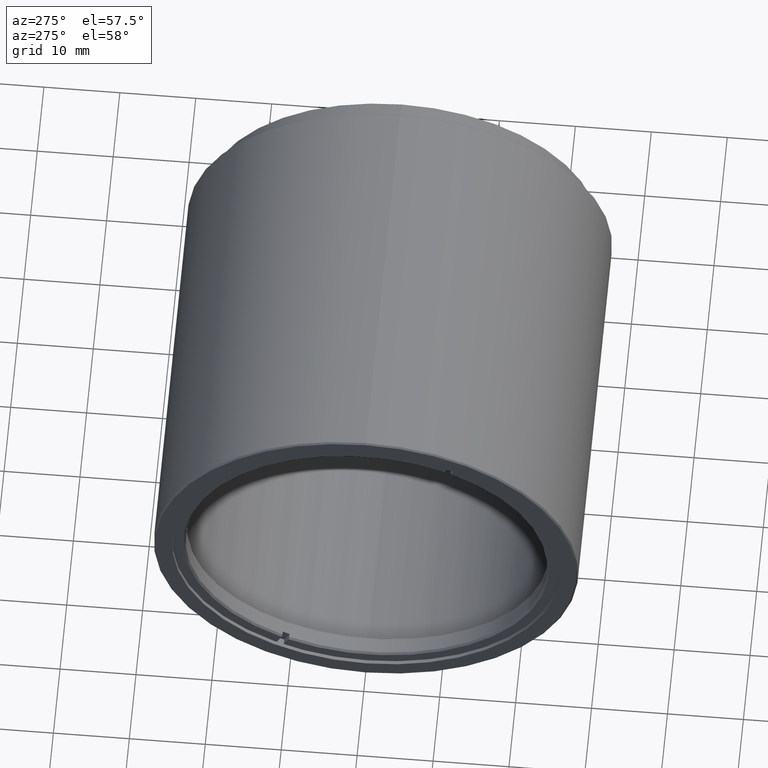
[diagram: clean part render]
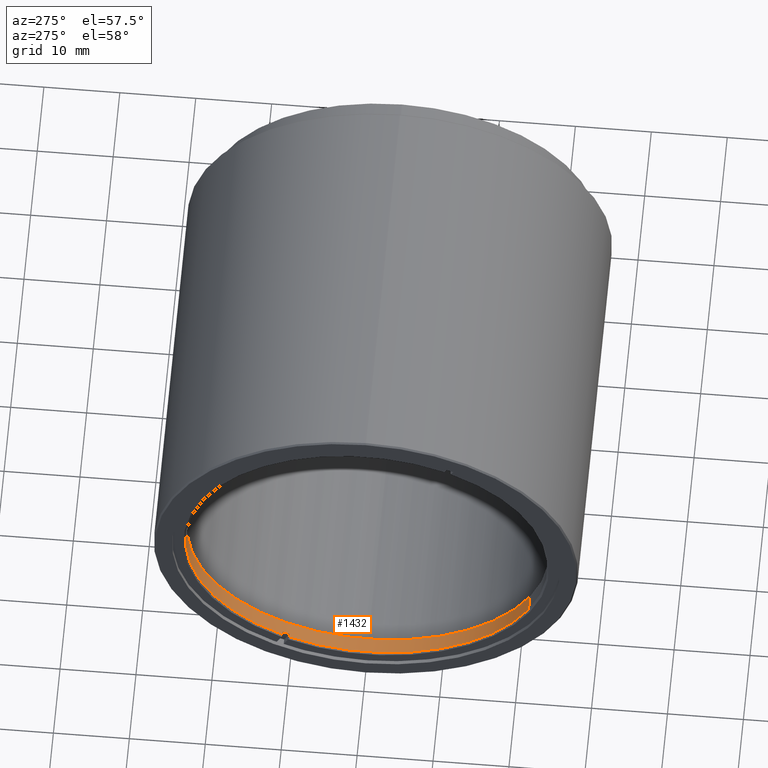
[diagram: same view with one face highlighted and labeled with its STEP entity id]
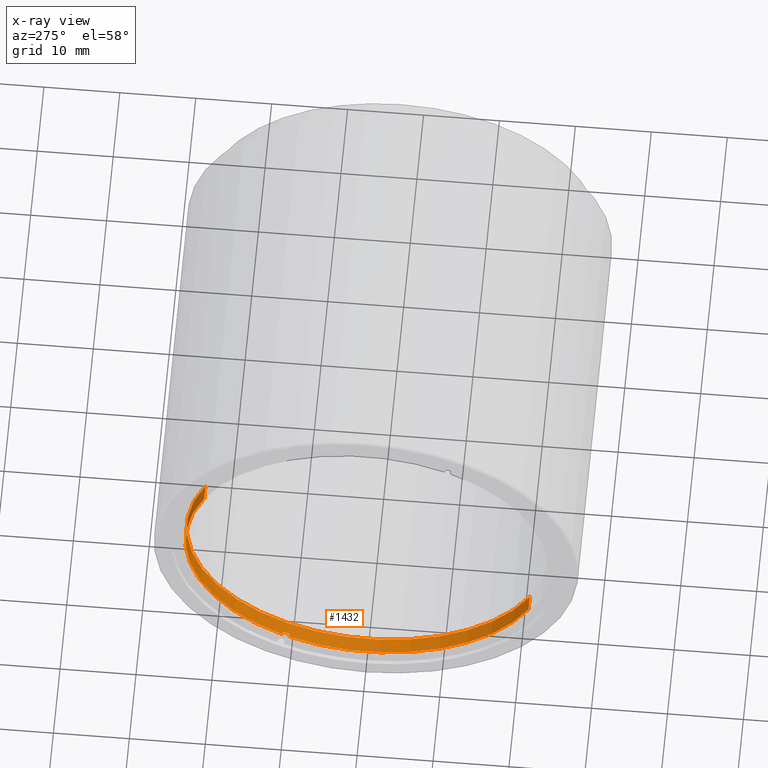
[diagram: x-ray of the same camera — body ghosted, the highlighted face saturated]
A machine part, auxiliary view. The second image highlights one B-rep face of the part: STEP entity #1432.
The next image is the same camera in x-ray: the body ghosted, the highlighted face saturated — about 0% of this face is hidden behind the body in this view.
In plain terms, the highlighted cylindrical surface (partial cylindrical patch) has radius 23.8445 mm, axis along (1, -0, 0).
Its self-contained STEP definition (entity closure, byte-faithful):
#3 = EDGE_CURVE ( 'NONE', #663, #185, #953, .T. ) ;
#9 = FACE_OUTER_BOUND ( 'NONE', #754, .T. ) ;
#57 = VERTEX_POINT ( 'NONE', #949 ) ;
#65 = CIRCLE ( 'NONE', #1467, 23.84450000000000713 ) ;
#80 = CARTESIAN_POINT ( 'NONE',  ( -47.59004185299394862, -41.46913427924820184, -10.59653410093542547 ) ) ;
#91 = LINE ( 'NONE', #1305, #1110 ) ;
#102 = EDGE_CURVE ( 'NONE', #1377, #185, #91, .T. ) ;
#110 = CARTESIAN_POINT ( 'NONE',  ( -46.89004185299394578, -20.10857142857141966, 3.354250471127029343E-15 ) ) ;
#113 = EDGE_CURVE ( 'NONE', #896, #626, #304, .T. ) ;
#185 = VERTEX_POINT ( 'NONE', #591 ) ;
#210 = ORIENTED_EDGE ( 'NONE', *, *, #1294, .T. ) ;
#212 = DIRECTION ( 'NONE',  ( -1.000000000000000000, 0.000000000000000000, -0.000000000000000000 ) ) ;
#228 = DIRECTION ( 'NONE',  ( 0.000000000000000000, -0.8958276688828356038, -0.4444016062796631306 ) ) ;
#234 = ORIENTED_EDGE ( 'NONE', *, *, #102, .F. ) ;
#240 = EDGE_CURVE ( 'NONE', #1319, #896, #1258, .T. ) ;
#273 = EDGE_CURVE ( 'NONE', #1319, #1341, #596, .T. ) ;
#280 = VECTOR ( 'NONE', #1180, 1000.000000000000000 ) ;
#304 = LINE ( 'NONE', #80, #1561 ) ;
#385 = DIRECTION ( 'NONE',  ( -1.000000000000000000, 0.000000000000000000, 0.000000000000000000 ) ) ;
#394 = CARTESIAN_POINT ( 'NONE',  ( -47.59004185299394862, -9.962281104352721073, -21.57806694091631883 ) ) ;
#399 = DIRECTION ( 'NONE',  ( 1.000000000000000000, -0.000000000000000000, 0.000000000000000000 ) ) ;
#435 = LINE ( 'NONE', #1191, #280 ) ;
#486 = DIRECTION ( 'NONE',  ( 0.000000000000000000, -0.8958276688828356038, -0.4444016062796631306 ) ) ;
#518 = CARTESIAN_POINT ( 'NONE',  ( -47.34004185299392731, -20.10857142857141966, 3.354250471127029343E-15 ) ) ;
#591 = CARTESIAN_POINT ( 'NONE',  ( -47.34004185299392731, -9.066453435469885136, -21.13366533463665675 ) ) ;
#596 = LINE ( 'NONE', #394, #1497 ) ;
#612 = EDGE_CURVE ( 'NONE', #626, #57, #621, .T. ) ;
#621 = CIRCLE ( 'NONE', #713, 23.84450000000000713 ) ;
#626 = VERTEX_POINT ( 'NONE', #1329 ) ;
#649 = CARTESIAN_POINT ( 'NONE',  ( -47.34004185299392731, -41.46913427924820184, -10.59653410093542725 ) ) ;
#663 = VERTEX_POINT ( 'NONE', #709 ) ;
#707 = CARTESIAN_POINT ( 'NONE',  ( -47.34004185299392731, -9.962281104352721073, -21.57806694091631883 ) ) ;
#709 = CARTESIAN_POINT ( 'NONE',  ( -47.34004185299392731, 1.251991422105348084, 10.59653410093543080 ) ) ;
#711 = DIRECTION ( 'NONE',  ( 1.000000000000000000, -0.000000000000000000, 0.000000000000000000 ) ) ;
#713 = AXIS2_PLACEMENT_3D ( 'NONE', #1428, #837, #228 ) ;
#729 = CARTESIAN_POINT ( 'NONE',  ( -47.59004185299394862, -20.10857142857141966, 3.354250471127029343E-15 ) ) ;
#740 = DIRECTION ( 'NONE',  ( 1.000000000000000000, -0.000000000000000000, 0.000000000000000000 ) ) ;
#747 = DIRECTION ( 'NONE',  ( 0.000000000000000000, -0.8958276688828356038, -0.4444016062796631306 ) ) ;
#754 = EDGE_LOOP ( 'NONE', ( #1058, #1544, #817, #1445, #1490, #234, #210, #1545 ) ) ;
#817 = ORIENTED_EDGE ( 'NONE', *, *, #612, .T. ) ;
#837 = DIRECTION ( 'NONE',  ( 1.000000000000000000, -0.000000000000000000, -0.000000000000000000 ) ) ;
#895 = DIRECTION ( 'NONE',  ( 0.000000000000000000, -0.8958276688828356038, -0.4444016062796631306 ) ) ;
#896 = VERTEX_POINT ( 'NONE', #649 ) ;
#949 = CARTESIAN_POINT ( 'NONE',  ( -45.34004185299393441, 1.251991422105358520, 10.59653410093543791 ) ) ;
#953 = CIRCLE ( 'NONE', #1113, 23.84450000000000713 ) ;
#1049 = CYLINDRICAL_SURFACE ( 'NONE', #1147, 23.84450000000000358 ) ;
#1058 = ORIENTED_EDGE ( 'NONE', *, *, #240, .T. ) ;
#1110 = VECTOR ( 'NONE', #212, 1000.000000000000000 ) ;
#1113 = AXIS2_PLACEMENT_3D ( 'NONE', #518, #1500, #895 ) ;
#1147 = AXIS2_PLACEMENT_3D ( 'NONE', #729, #740, #1364 ) ;
#1180 = DIRECTION ( 'NONE',  ( 1.000000000000000000, -0.000000000000000000, 0.000000000000000000 ) ) ;
#1182 = AXIS2_PLACEMENT_3D ( 'NONE', #1486, #385, #747 ) ;
#1191 = CARTESIAN_POINT ( 'NONE',  ( -47.59004185299394862, 1.251991422105354967, 10.59653410093543435 ) ) ;
#1203 = CARTESIAN_POINT ( 'NONE',  ( -46.89004185299394578, -9.066453435469885136, -21.13366533463665675 ) ) ;
#1220 = DIRECTION ( 'NONE',  ( -1.000000000000000000, 0.000000000000000000, 0.000000000000000000 ) ) ;
#1234 = EDGE_CURVE ( 'NONE', #663, #57, #435, .T. ) ;
#1258 = CIRCLE ( 'NONE', #1182, 23.84450000000000713 ) ;
#1294 = EDGE_CURVE ( 'NONE', #1377, #1341, #65, .T. ) ;
#1305 = CARTESIAN_POINT ( 'NONE',  ( -47.59004185299394862, -9.066453435469885136, -21.13366533463665675 ) ) ;
#1319 = VERTEX_POINT ( 'NONE', #707 ) ;
#1329 = CARTESIAN_POINT ( 'NONE',  ( -45.34004185299393441, -41.46913427924820184, -10.59653410093542725 ) ) ;
#1341 = VERTEX_POINT ( 'NONE', #1585 ) ;
#1364 = DIRECTION ( 'NONE',  ( 0.000000000000000000, 0.8958276688828354928, 0.4444016062796631861 ) ) ;
#1377 = VERTEX_POINT ( 'NONE', #1203 ) ;
#1428 = CARTESIAN_POINT ( 'NONE',  ( -45.34004185299393441, -20.10857142857141966, 3.354250471127029343E-15 ) ) ;
#1432 = ADVANCED_FACE ( 'NONE', ( #9 ), #1049, .F. ) ;
#1445 = ORIENTED_EDGE ( 'NONE', *, *, #1234, .F. ) ;
#1467 = AXIS2_PLACEMENT_3D ( 'NONE', #110, #1220, #486 ) ;
#1486 = CARTESIAN_POINT ( 'NONE',  ( -47.34004185299392731, -20.10857142857141966, 3.354250471127029343E-15 ) ) ;
#1490 = ORIENTED_EDGE ( 'NONE', *, *, #3, .T. ) ;
#1497 = VECTOR ( 'NONE', #399, 1000.000000000000000 ) ;
#1500 = DIRECTION ( 'NONE',  ( -1.000000000000000000, 0.000000000000000000, 0.000000000000000000 ) ) ;
#1544 = ORIENTED_EDGE ( 'NONE', *, *, #113, .T. ) ;
#1545 = ORIENTED_EDGE ( 'NONE', *, *, #273, .F. ) ;
#1561 = VECTOR ( 'NONE', #711, 1000.000000000000000 ) ;
#1585 = CARTESIAN_POINT ( 'NONE',  ( -46.89004185299394578, -9.962281104352721073, -21.57806694091631883 ) ) ;